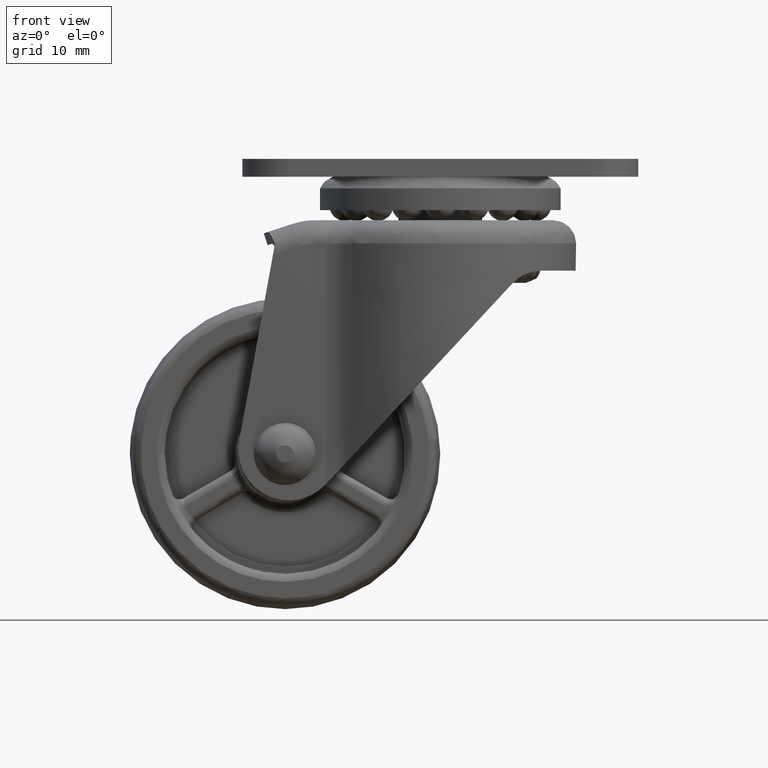
[diagram: clean part render]
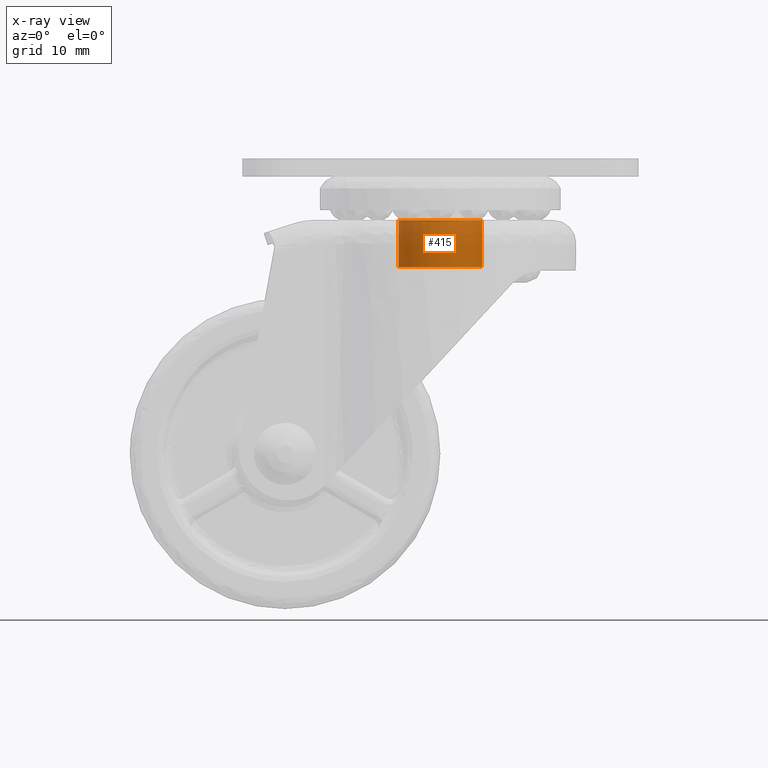
[diagram: x-ray — body ghosted, one internal face saturated and labeled with its STEP entity id]
A machine part, front view, then the same camera in x-ray: the body is ghosted and one INTERNAL B-rep face — a face not visible from any outside direction — is saturated and labeled: STEP entity #415.
In plain terms, the highlighted face is a freeform B-spline surface patch.
Its self-contained STEP definition (entity closure, byte-faithful):
#264=CARTESIAN_POINT('',(25.023475580086924,1.886830554543800,30.251931265092992));
#265=CARTESIAN_POINT('',(25.306917350603037,1.132198502855085,30.251931265092992));
#266=CARTESIAN_POINT('',(25.356129016084939,0.327594884487803,30.251931265092988));
#267=CARTESIAN_POINT('',(25.683723900572737,-5.028534131597381,30.251931265092981));
#268=CARTESIAN_POINT('',(20.327594884487549,-5.356129016085184,30.251931265092988));
#269=CARTESIAN_POINT('',(14.971465868402371,-5.683723900572987,30.251931265092981));
#270=CARTESIAN_POINT('',(14.643870983914571,-0.327594884487803,30.251931265092988));
#271=CARTESIAN_POINT('',(14.316276099426762,5.028534131597381,30.251931265092981));
#272=CARTESIAN_POINT('',(19.672405115511950,5.356129016085184,30.251931265092988));
#273=CARTESIAN_POINT('',(25.023475580086924,1.886830554543800,23.867061874556178));
#274=CARTESIAN_POINT('',(25.306917350603037,1.132198502855085,23.867061874556178));
#275=CARTESIAN_POINT('',(25.356129016084939,0.327594884487803,23.867061874556178));
#276=CARTESIAN_POINT('',(25.683723900572737,-5.028534131597381,23.867061874556185));
#277=CARTESIAN_POINT('',(20.327594884487549,-5.356129016085184,23.867061874556178));
#278=CARTESIAN_POINT('',(14.971465868402371,-5.683723900572987,23.867061874556185));
#279=CARTESIAN_POINT('',(14.643870983914571,-0.327594884487803,23.867061874556178));
#280=CARTESIAN_POINT('',(14.316276099426762,5.028534131597381,23.867061874556185));
#281=CARTESIAN_POINT('',(19.672405115511950,5.356129016085184,23.867061874556178));
#289=(BOUNDED_SURFACE()B_SPLINE_SURFACE(2,1,((#264,#273),(#265,#274),(#266,#275),(#267,#276),(#268,#277),(#269,#278),(#270,#279),(#271,#280),(#272,#281)),.UNSPECIFIED.,.F.,.F.,.U.)B_SPLINE_SURFACE_WITH_KNOTS((3,2,2,2,3),(2,2),(0.0,1.778181691523272,10.669090149139640,19.559998606756000,28.450907064372359),(0.0,6.384869390536804),.UNSPECIFIED.)GEOMETRIC_REPRESENTATION_ITEM()RATIONAL_B_SPLINE_SURFACE(((0.906274169979695,0.906274169979695),(0.941421356237309,0.941421356237309),(1.0,1.0),(0.707106781186548,0.707106781186548),(1.0,1.0),(0.707106781186548,0.707106781186548),(1.0,1.0),(0.707106781186548,0.707106781186548),(1.0,1.0)))REPRESENTATION_ITEM('')SURFACE());
#290=CARTESIAN_POINT('',(25.023475580085329,1.886830554548066,24.022790396477710));
#291=VERTEX_POINT('',#290);
#292=CARTESIAN_POINT('',(25.366137945048528,1.135119E-016,24.022790396422369));
#293=VERTEX_POINT('',#292);
#294=CARTESIAN_POINT('',(25.023475580085325,1.886830554548066,24.022790396477717));
#295=CARTESIAN_POINT('',(25.366137945048518,0.974530285478672,24.022790396450958));
#296=CARTESIAN_POINT('',(25.366137945048528,1.135119E-016,24.022790396422369));
#304=(BOUNDED_CURVE()B_SPLINE_CURVE(2,(#294,#295,#296),.UNSPECIFIED.,.F.,.U.)B_SPLINE_CURVE_WITH_KNOTS((3,3),(0.440284170898641,0.500000000000000),.UNSPECIFIED.)CURVE()GEOMETRIC_REPRESENTATION_ITEM()RATIONAL_B_SPLINE_CURVE((0.893499554635437,0.930038554401556,1.0))REPRESENTATION_ITEM(''));
#305=EDGE_CURVE('',#291,#293,#304,.T.);
#306=ORIENTED_EDGE('',*,*,#305,.T.);
#307=CARTESIAN_POINT('',(20.619596982410702,-5.330247276128903,24.022790396276591));
#308=VERTEX_POINT('',#307);
#309=CARTESIAN_POINT('',(25.366137945048528,1.135119E-016,24.022790396422369));
#310=CARTESIAN_POINT('',(25.366137945048525,-4.778501305336237,24.022790396579747));
#311=CARTESIAN_POINT('',(20.619596982410695,-5.330247276128903,24.022790396276591));
#319=(BOUNDED_CURVE()B_SPLINE_CURVE(2,(#309,#310,#311),.UNSPECIFIED.,.F.,.U.)B_SPLINE_CURVE_WITH_KNOTS((3,3),(0.500000000000000,0.729999999992185),.UNSPECIFIED.)CURVE()GEOMETRIC_REPRESENTATION_ITEM()RATIONAL_B_SPLINE_CURVE((1.0,0.730538238700779,0.956886118175279))REPRESENTATION_ITEM(''));
#320=EDGE_CURVE('',#293,#308,#319,.T.);
#321=ORIENTED_EDGE('',*,*,#320,.T.);
#322=CARTESIAN_POINT('',(14.633862054950979,0.0,24.022790396579751));
#323=VERTEX_POINT('',#322);
#324=CARTESIAN_POINT('',(20.619596982410698,-5.330247276128903,24.022790396276591));
#325=CARTESIAN_POINT('',(20.310837989644643,-5.366137945048771,24.022790396579754));
#326=CARTESIAN_POINT('',(19.999999999999751,-5.366137945048770,24.022790396579751));
#327=CARTESIAN_POINT('',(14.633862054950976,-5.366137945048770,24.022790396579747));
#328=CARTESIAN_POINT('',(14.633862054950979,0.0,24.022790396579751));
#336=(BOUNDED_CURVE()B_SPLINE_CURVE(2,(#324,#325,#326,#327,#328),.UNSPECIFIED.,.F.,.U.)B_SPLINE_CURVE_WITH_KNOTS((3,2,3),(0.729999999992186,0.750000000000000,1.0),.UNSPECIFIED.)CURVE()GEOMETRIC_REPRESENTATION_ITEM()RATIONAL_B_SPLINE_CURVE((0.956886118175279,0.976568542485769,1.0,0.707106781186547,1.0))REPRESENTATION_ITEM(''));
#337=EDGE_CURVE('',#308,#323,#336,.T.);
#338=ORIENTED_EDGE('',*,*,#337,.T.);
#339=CARTESIAN_POINT('',(19.672405115416019,5.356129016079318,24.022790396579751));
#340=VERTEX_POINT('',#339);
#341=CARTESIAN_POINT('',(14.633862054950979,0.0,24.022790396579751));
#342=CARTESIAN_POINT('',(14.633862054950988,5.047958520579077,24.022790396579758));
#343=CARTESIAN_POINT('',(19.672405115416019,5.356129016079319,24.022790396579751));
#351=(BOUNDED_CURVE()B_SPLINE_CURVE(2,(#341,#342,#343),.UNSPECIFIED.,.F.,.U.)B_SPLINE_CURVE_WITH_KNOTS((3,3),(0.0,0.239332962235788),.UNSPECIFIED.)CURVE()GEOMETRIC_REPRESENTATION_ITEM()RATIONAL_B_SPLINE_CURVE((1.0,0.719603993290407,0.976072041659955))REPRESENTATION_ITEM(''));
#352=EDGE_CURVE('',#323,#340,#351,.T.);
#353=ORIENTED_EDGE('',*,*,#352,.T.);
#354=CARTESIAN_POINT('',(19.672405115416019,5.356129016079317,30.100000999999899));
#355=VERTEX_POINT('',#354);
#356=CARTESIAN_POINT('',(19.672405115416019,5.356129016079317,30.100000999999899));
#357=CARTESIAN_POINT('',(19.672405115416019,5.356129016079318,24.022790396579751));
#358=QUASI_UNIFORM_CURVE('',1,(#356,#357),.UNSPECIFIED.,.F.,.U.);
#359=EDGE_CURVE('',#355,#340,#358,.T.);
#360=ORIENTED_EDGE('',*,*,#359,.F.);
#361=CARTESIAN_POINT('',(14.633862054950979,0.0,30.100000999999899));
#362=VERTEX_POINT('',#361);
#363=CARTESIAN_POINT('',(14.633862054950979,0.0,30.100000999999899));
#364=CARTESIAN_POINT('',(14.633862054950985,5.047958520579075,30.100000999999903));
#365=CARTESIAN_POINT('',(19.672405115416023,5.356129016079317,30.100000999999896));
#373=(BOUNDED_CURVE()B_SPLINE_CURVE(2,(#363,#364,#365),.UNSPECIFIED.,.F.,.U.)B_SPLINE_CURVE_WITH_KNOTS((3,3),(0.0,0.239332962235788),.UNSPECIFIED.)CURVE()GEOMETRIC_REPRESENTATION_ITEM()RATIONAL_B_SPLINE_CURVE((1.0,0.719603993290407,0.976072041659955))REPRESENTATION_ITEM(''));
#374=EDGE_CURVE('',#362,#355,#373,.T.);
#375=ORIENTED_EDGE('',*,*,#374,.F.);
#376=CARTESIAN_POINT('',(25.366137945048521,0.0,30.100000999999899));
#377=VERTEX_POINT('',#376);
#378=CARTESIAN_POINT('',(25.366137945048521,0.0,30.100000999999899));
#379=CARTESIAN_POINT('',(25.366137945048514,-5.366137945048770,30.100000999999899));
#380=CARTESIAN_POINT('',(19.999999999999751,-5.366137945048770,30.100000999999899));
#381=CARTESIAN_POINT('',(14.633862054950976,-5.366137945048770,30.100000999999899));
#382=CARTESIAN_POINT('',(14.633862054950979,0.0,30.100000999999899));
#390=(BOUNDED_CURVE()B_SPLINE_CURVE(2,(#378,#379,#380,#381,#382),.UNSPECIFIED.,.F.,.U.)B_SPLINE_CURVE_WITH_KNOTS((3,2,3),(0.500000000000000,0.750000000000000,1.0),.UNSPECIFIED.)CURVE()GEOMETRIC_REPRESENTATION_ITEM()RATIONAL_B_SPLINE_CURVE((1.0,0.707106781186547,1.0,0.707106781186547,1.0))REPRESENTATION_ITEM(''));
#391=EDGE_CURVE('',#377,#362,#390,.T.);
#392=ORIENTED_EDGE('',*,*,#391,.F.);
#393=CARTESIAN_POINT('',(25.023475580085329,1.886830554548066,30.100000999999899));
#394=VERTEX_POINT('',#393);
#395=CARTESIAN_POINT('',(25.023475580085325,1.886830554548066,30.100000999999899));
#396=CARTESIAN_POINT('',(25.366137945048518,0.974530285478672,30.100000999999896));
#397=CARTESIAN_POINT('',(25.366137945048521,0.0,30.100000999999899));
#405=(BOUNDED_CURVE()B_SPLINE_CURVE(2,(#395,#396,#397),.UNSPECIFIED.,.F.,.U.)B_SPLINE_CURVE_WITH_KNOTS((3,3),(0.440284170898641,0.500000000000000),.UNSPECIFIED.)CURVE()GEOMETRIC_REPRESENTATION_ITEM()RATIONAL_B_SPLINE_CURVE((0.893499554635437,0.930038554401556,1.0))REPRESENTATION_ITEM(''));
#406=EDGE_CURVE('',#394,#377,#405,.T.);
#407=ORIENTED_EDGE('',*,*,#406,.F.);
#408=CARTESIAN_POINT('',(25.023475580085329,1.886830554548066,30.100000999999899));
#409=CARTESIAN_POINT('',(25.023475580085329,1.886830554548066,24.022790396477710));
#410=QUASI_UNIFORM_CURVE('',1,(#408,#409),.UNSPECIFIED.,.F.,.U.);
#411=EDGE_CURVE('',#394,#291,#410,.T.);
#412=ORIENTED_EDGE('',*,*,#411,.T.);
#413=EDGE_LOOP('',(#306,#321,#338,#353,#360,#375,#392,#407,#412));
#414=FACE_OUTER_BOUND('',#413,.T.);
#415=ADVANCED_FACE('',(#414),#289,.F.);